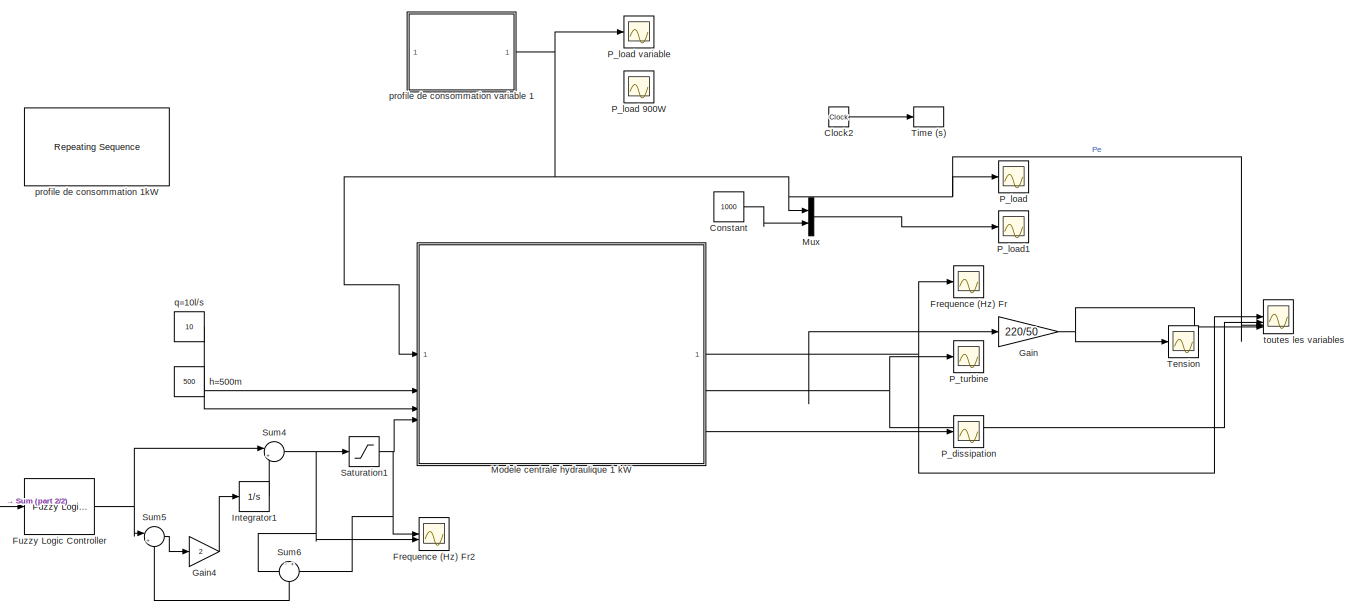
[diagram: root canvas - part 1/2, full width, middle band]
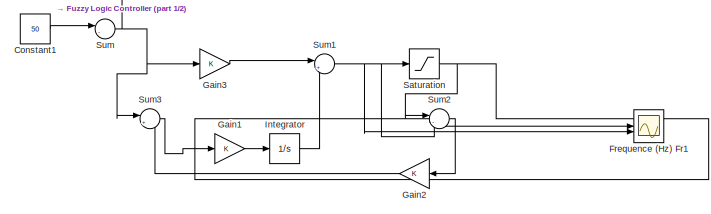
[diagram: root canvas - part 2/2, bottom left region]
MODEL mdl_9a7ac70853d0
KIND model
CONFIG AbsTol = auto
CONFIG EnableMultiTasking = on
CONFIG FixedStep = 0.02
CONFIG MaxStep = auto
CONFIG MinStep = auto
CONFIG RelTol = 1e-3
CONFIG SampleTimeConstraint = Unconstrained
CONFIG SolverName = ode3
CONFIG StartTime = 0.0
CONFIG StopTime = 35
BLOCK [Clock] Clock2
BLOCK [Constant] Constant
  Value = 1000
BLOCK [Constant] Constant1
  Value = 50
BLOCK [Scope] Frequence (Hz) Fr
  Floating = off
  NumInputPorts = 1
  ScopeSpecificationString = Simulink.scopes.TimeScopeBlockCfg('CurrentConfiguration', extmgr.ConfigurationSet(extmgr.Configuration('Core','General UI',true),extmgr.Configuration('Core','Source UI',true),extmgr.Configuration('Sources','WiredSimulink',true,'DataLoggingVariableName','ScopeData2','DataLoggingSaveFormat','StructureWithTime','DataLoggingLimitDataPoints',true,'DataLoggingDecimation','1','DataLoggingDecimateData',tr...<+1783ch>
BLOCK [Scope] Frequence (Hz) Fr1
  Floating = off
  NumInputPorts = 2
  ScopeSpecificationString = Simulink.scopes.TimeScopeBlockCfg('CurrentConfiguration', extmgr.ConfigurationSet(extmgr.Configuration('Core','General UI',true),extmgr.Configuration('Core','Source UI',true),extmgr.Configuration('Sources','WiredSimulink',true,'DataLoggingVariableName','ScopeData1','DataLoggingSaveFormat','StructureWithTime','DataLoggingLimitDataPoints',true,'DataLoggingDecimation','1','DataLoggingDecimateData',tr...<+1693ch>
BLOCK [Scope] Frequence (Hz) Fr2
  Floating = off
  NumInputPorts = 2
  ScopeSpecificationString = Simulink.scopes.TimeScopeBlockCfg('CurrentConfiguration', extmgr.ConfigurationSet(extmgr.Configuration('Core','General UI',true),extmgr.Configuration('Core','Source UI',true),extmgr.Configuration('Sources','WiredSimulink',true,'DataLoggingVariableName','ScopeData1','DataLoggingSaveFormat','StructureWithTime','DataLoggingLimitDataPoints',true,'DataLoggingDecimation','1','DataLoggingDecimateData',tr...<+1690ch>
BLOCK [Reference] Fuzzy Logic Controller  REF=fuzblock/Fuzzy Logic   (lib defined in mdl_858b3b3e7478)
Controller
  SourceBlock = fuzblock/Fuzzy Logic \nController
  SourceType = Fuzzy Inference System
BLOCK [Gain] Gain
  Gain = 220/50
BLOCK [Gain] Gain1
BLOCK [Gain] Gain2
  NameLocation = top
BLOCK [Gain] Gain3
BLOCK [Gain] Gain4
  Gain = 2
BLOCK [Integrator] Integrator
BLOCK [Integrator] Integrator1
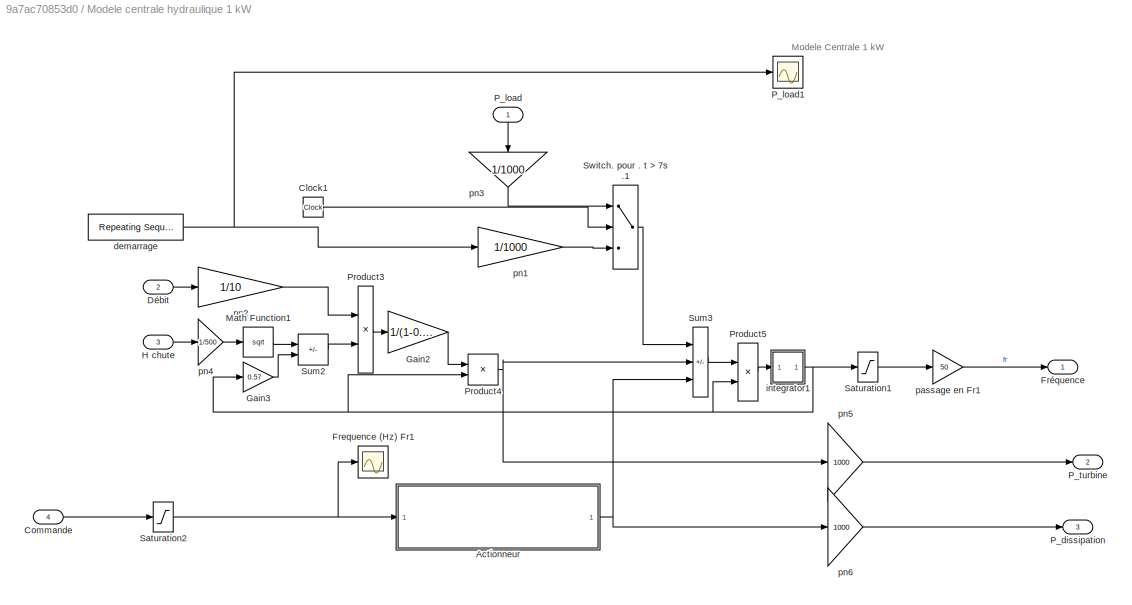
BLOCK [SubSystem] Modele centrale hydraulique 1 kW
  Permissions = NoReadOrWrite
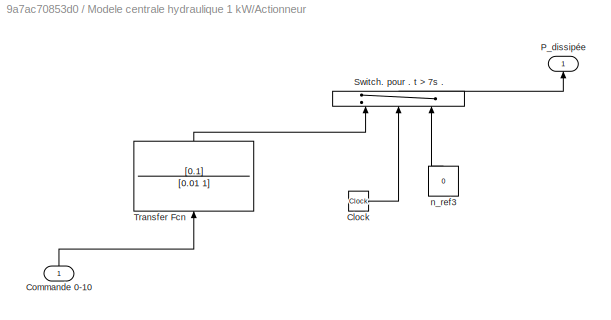
BLOCK [SubSystem] Modele centrale hydraulique 1 kW/Actionneur
BLOCK [Clock] Modele centrale hydraulique 1 kW/Actionneur/Clock
BLOCK [Inport] Modele centrale hydraulique 1 kW/Actionneur/Commande 0-10
  NameLocation = right
BLOCK [Outport] Modele centrale hydraulique 1 kW/Actionneur/P_dissipée
  NameLocation = right
BLOCK [Switch] Modele centrale hydraulique 1 kW/Actionneur/Switch. pour . t > 7s .
  InputSameDT = off
  NameLocation = left
  SaturateOnIntegerOverflow = off
  Threshold = 10
BLOCK [TransferFcn] Modele centrale hydraulique 1 kW/Actionneur/Transfer Fcn
  Denominator = [0.01 1]
  NameLocation = right
  Numerator = [0.1]
BLOCK [Constant] Modele centrale hydraulique 1 kW/Actionneur/n_ref3
  NameLocation = right
  SampleTime = 0.02
  Value = 0
BLOCK [Clock] Modele centrale hydraulique 1 kW/Clock1
BLOCK [Inport] Modele centrale hydraulique 1 kW/Commande
  Port = 4
BLOCK [Inport] Modele centrale hydraulique 1 kW/Débit
  Port = 2
BLOCK [Scope] Modele centrale hydraulique 1 kW/Frequence (Hz) Fr1
  Floating = off
  NumInputPorts = 1
  ScopeSpecificationString = C++SS(StrPVP('Location','[5, 48, 1925, 1039]'),StrPVP('Open','off'),MxPVP('AxesTitles',54,'struct(''axes1'',''%<SignalLabel>'')'),StrPVP('SaveName','ScopeData6'),StrPVP('DataFormat','StructureWithTime'),StrPVP('BlockParamSampleTime','0'),StrPVP('LimitDataPoints','on'),StrPVP('Decimation','1'),StrPVP('BlockParamSampleInput','off'))
BLOCK [Outport] Modele centrale hydraulique 1 kW/Fréquence
BLOCK [Gain] Modele centrale hydraulique 1 kW/Gain2
  Gain = 1/(1-0.57)
  OutDataTypeStr = Inherit: Same as input
  ParamDataTypeStr = Inherit: Same as input
  SaturateOnIntegerOverflow = on
BLOCK [Gain] Modele centrale hydraulique 1 kW/Gain3
  Gain = 0.57
  OutDataTypeStr = Inherit: Same as input
  ParamDataTypeStr = Inherit: Same as input
  SaturateOnIntegerOverflow = on
BLOCK [Inport] Modele centrale hydraulique 1 kW/H chute
  Port = 3
BLOCK [Math] Modele centrale hydraulique 1 kW/Math Function1
  Operator = sqrt
  SignedPower = on
BLOCK [Outport] Modele centrale hydraulique 1 kW/P_dissipation
  Port = 3
BLOCK [Inport] Modele centrale hydraulique 1 kW/P_load
  NameLocation = right
BLOCK [Scope] Modele centrale hydraulique 1 kW/P_load1
  Floating = off
  NumInputPorts = 1
  ScopeSpecificationString = Simulink.scopes.TimeScopeBlockCfg('CurrentConfiguration', extmgr.ConfigurationSet(extmgr.Configuration('Core','General UI',true),extmgr.Configuration('Core','Source UI',true),extmgr.Configuration('Sources','WiredSimulink',true,'DataLoggingVariableName','ScopeData1','DataLoggingSaveFormat','StructureWithTime','DataLoggingLimitDataPoints',true,'DataLoggingDecimation','1','DataLoggingDecimateData',tr...<+1700ch>
BLOCK [Outport] Modele centrale hydraulique 1 kW/P_turbine
  Port = 2
BLOCK [Product] Modele centrale hydraulique 1 kW/Product3
  InputSameDT = on
  OutDataTypeStr = Inherit: Same as first input
  SaturateOnIntegerOverflow = on
BLOCK [Product] Modele centrale hydraulique 1 kW/Product4
  InputSameDT = on
  OutDataTypeStr = Inherit: Same as first input
  SaturateOnIntegerOverflow = on
BLOCK [Product] Modele centrale hydraulique 1 kW/Product5
  InputSameDT = on
  Inputs = */
  OutDataTypeStr = Inherit: Same as first input
  SaturateOnIntegerOverflow = on
BLOCK [Saturate] Modele centrale hydraulique 1 kW/Saturation1
  LowerLimit = 0
  UpperLimit = 2.5
BLOCK [Saturate] Modele centrale hydraulique 1 kW/Saturation2
  LowerLimit = 0
  UpperLimit = 10
BLOCK [Sum] Modele centrale hydraulique 1 kW/Sum2
  IconShape = rectangular
  InputSameDT = on
  Inputs = +-
  OutDataTypeStr = Inherit: Same as first input
  SaturateOnIntegerOverflow = on
BLOCK [Sum] Modele centrale hydraulique 1 kW/Sum3
  IconShape = rectangular
  InputSameDT = on
  Inputs = -+-
  OutDataTypeStr = Inherit: Same as first input
  SaturateOnIntegerOverflow = on
BLOCK [Switch] Modele centrale hydraulique 1 kW/Switch. pour . t > 7s .1
  InputSameDT = off
  NameLocation = top
  SaturateOnIntegerOverflow = off
  Threshold = 10
BLOCK [Reference] Modele centrale hydraulique 1 kW/demarrage  REF=simulink/Sources/Repeating
Sequence
  NameLocation = top
  SourceBlock = simulink/Sources/Repeating\nSequence
  SourceType = Repeating table
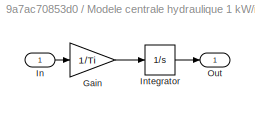
BLOCK [SubSystem] Modele centrale hydraulique 1 kW/integrator1
  ShowPortLabels = none
BLOCK [Gain] Modele centrale hydraulique 1 kW/integrator1/Gain
  Gain = 1/Ti
  OutDataTypeStr = Inherit: Same as input
  ParamDataTypeStr = Inherit: Same as input
  SaturateOnIntegerOverflow = on
BLOCK [Inport] Modele centrale hydraulique 1 kW/integrator1/In
BLOCK [Integrator] Modele centrale hydraulique 1 kW/integrator1/Integrator
  InitialCondition = Init
BLOCK [Outport] Modele centrale hydraulique 1 kW/integrator1/Out
  InitialOutput = 0
BLOCK [Gain] Modele centrale hydraulique 1 kW/passage en Fr1
  Gain = 50
BLOCK [Gain] Modele centrale hydraulique 1 kW/pn1
  Gain = 1/1000
  NameLocation = top
BLOCK [Gain] Modele centrale hydraulique 1 kW/pn2
  Gain = 1/10
  NameLocation = top
BLOCK [Gain] Modele centrale hydraulique 1 kW/pn3
  Gain = 1/1000
  NameLocation = right
BLOCK [Gain] Modele centrale hydraulique 1 kW/pn4
  Gain = 1/500
  NameLocation = top
BLOCK [Gain] Modele centrale hydraulique 1 kW/pn5
  Gain = 1000
  NameLocation = top
BLOCK [Gain] Modele centrale hydraulique 1 kW/pn6
  Gain = 1000
  NameLocation = top
BLOCK [Mux] Mux
  DisplayOption = bar
  Inputs = 2
BLOCK [Scope] P_dissipation
  Floating = off
  NumInputPorts = 1
  ScopeSpecificationString = Simulink.scopes.TimeScopeBlockCfg('CurrentConfiguration', extmgr.ConfigurationSet(extmgr.Configuration('Core','General UI',true),extmgr.Configuration('Core','Source UI',true),extmgr.Configuration('Sources','WiredSimulink',true,'DataLoggingVariableName','ScopeData3','DataLoggingSaveFormat','StructureWithTime','DataLoggingLimitDataPoints',true,'DataLoggingDecimation','1','DataLoggingDecimateData',tr...<+1705ch>
BLOCK [Scope] P_load
  Floating = off
  NumInputPorts = 1
  ScopeSpecificationString = Simulink.scopes.TimeScopeBlockCfg('CurrentConfiguration', extmgr.ConfigurationSet(extmgr.Configuration('Core','General UI',true),extmgr.Configuration('Core','Source UI',true),extmgr.Configuration('Sources','WiredSimulink',true,'DataLoggingVariableName','ScopeData1','DataLoggingSaveFormat','StructureWithTime','DataLoggingLimitDataPoints',true,'DataLoggingDecimation','1','DataLoggingDecimateData',tr...<+1691ch>
BLOCK [Scope] P_load 900W
  Floating = off
  NumInputPorts = 1
  ScopeSpecificationString = Simulink.scopes.TimeScopeBlockCfg('CurrentConfiguration', extmgr.ConfigurationSet(extmgr.Configuration('Core','General UI',true),extmgr.Configuration('Core','Source UI',true),extmgr.Configuration('Sources','WiredSimulink',true,'DataLoggingVariableName','ScopeData1','DataLoggingSaveFormat','StructureWithTime','DataLoggingLimitDataPoints',true,'DataLoggingDecimation','1','DataLoggingDecimateData',tr...<+1755ch>
BLOCK [Scope] P_load variable
  Floating = off
  NumInputPorts = 1
  ScopeSpecificationString = Simulink.scopes.TimeScopeBlockCfg('CurrentConfiguration', extmgr.ConfigurationSet(extmgr.Configuration('Core','General UI',true),extmgr.Configuration('Core','Source UI',true),extmgr.Configuration('Sources','WiredSimulink',true,'DataLoggingVariableName','ScopeData2','DataLoggingSaveFormat','StructureWithTime','DataLoggingLimitDataPoints',true,'DataLoggingDecimation','1','DataLoggingDecimateData',tr...<+1719ch>
BLOCK [Scope] P_load1
  Floating = off
  NumInputPorts = 1
  ScopeSpecificationString = Simulink.scopes.TimeScopeBlockCfg('CurrentConfiguration', extmgr.ConfigurationSet(extmgr.Configuration('Core','General UI',true),extmgr.Configuration('Core','Source UI',true),extmgr.Configuration('Sources','WiredSimulink',true,'DataLoggingVariableName','ScopeData4','DataLoggingSaveFormat','StructureWithTime','DataLoggingLimitDataPoints',true,'DataLoggingDecimation','1','DataLoggingDecimateData',tr...<+910ch>
BLOCK [Scope] P_turbine
  Floating = off
  NumInputPorts = 1
  ScopeSpecificationString = Simulink.scopes.TimeScopeBlockCfg('CurrentConfiguration', extmgr.ConfigurationSet(extmgr.Configuration('Core','General UI',true),extmgr.Configuration('Core','Source UI',true),extmgr.Configuration('Sources','WiredSimulink',true,'DataLoggingSaveFormat','StructureWithTime','DataLoggingLimitDataPoints',true,'DataLoggingDecimation','1','DataLoggingDecimateData',true),extmgr.Configuration('Visuals','Tim...<+1684ch>
BLOCK [Saturate] Saturation
  LowerLimit = 0
  UpperLimit = 10
BLOCK [Saturate] Saturation1
  LowerLimit = 0
  UpperLimit = 10
BLOCK [Sum] Sum
  Inputs = |-+
BLOCK [Sum] Sum1
  Inputs = |++
BLOCK [Sum] Sum2
  Inputs = |-+
BLOCK [Sum] Sum3
  Inputs = |+-
BLOCK [Sum] Sum4
  Inputs = |++
BLOCK [Sum] Sum5
  Inputs = |++
BLOCK [Sum] Sum6
  Inputs = -+
  NameLocation = left
BLOCK [Scope] Tension
  Floating = off
  NumInputPorts = 1
  ScopeSpecificationString = Simulink.scopes.TimeScopeBlockCfg('CurrentConfiguration', extmgr.ConfigurationSet(extmgr.Configuration('Core','General UI',true),extmgr.Configuration('Core','Source UI',true),extmgr.Configuration('Sources','WiredSimulink',true,'DataLoggingVariableName','ScopeData5','DataLoggingSaveFormat','StructureWithTime','DataLoggingLimitDataPoints',true,'DataLoggingDecimation','1','DataLoggingDecimateData',tr...<+1699ch>
BLOCK [ToWorkspace] Time (s)
  MaxDataPoints = inf
  SampleTime = -1
  VariableName = time
BLOCK [Constant] h=500m
  SampleTime = 0.02
  Value = 500
BLOCK [Reference] profile de consommation 1kW  REF=simulink/Sources/Repeating
Sequence
  NameLocation = top
  SourceBlock = simulink/Sources/Repeating\nSequence
  SourceType = Repeating table
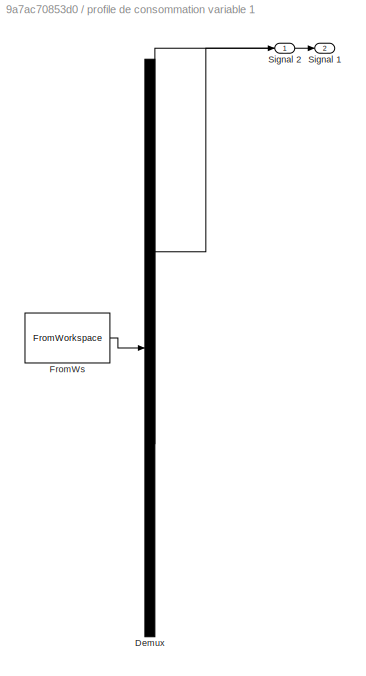
BLOCK [SubSystem] profile de consommation variable 1
  ClipboardFcn = sigbuilder_block('clipboard');
  CloseFcn = sigbuilder_block('close');
  ContinueFcn = sigbuilder_block('continue');
  CopyFcn = sigbuilder_block('copy');
  DeleteFcn = sigbuilder_block('delete');
  LoadFcn = sigbuilder_block('load');
  MaskHideContents = on
  ModelCloseFcn = sigbuilder_block('modelClose');
  NameChangeFcn = sigbuilder_block('namechange');
  OpenFcn = sigbuilder_block('open',[6 30 1428 681.75 ]);
  PauseFcn = sigbuilder_block('pause');
  PreSaveFcn = sigbuilder_block('preSave');
  StartFcn = sigbuilder_block('start');
  StopFcn = sigbuilder_block('stop');
  Tag = STV Subsys
BLOCK [Demux] profile de consommation variable 1/Demux
  DisplayOption = none
  Outputs = 2
  Tag = STV Demux
BLOCK [FromWorkspace] profile de consommation variable 1/FromWs
  Tag = STV FromWs
  VariableName = tuvar
BLOCK [Outport] profile de consommation variable 1/Signal 1
  Port = 2
  Tag = STV Outport
BLOCK [Outport] profile de consommation variable 1/Signal 2
  Tag = STV Outport
BLOCK [Constant] q=10l//s
  SampleTime = 0.02
  Value = 10
BLOCK [Scope] toutes les variables
  Floating = off
  NumInputPorts = 4
  ScopeSpecificationString = Simulink.scopes.TimeScopeBlockCfg('CurrentConfiguration', extmgr.ConfigurationSet(extmgr.Configuration('Core','General UI',true),extmgr.Configuration('Core','Source UI',true),extmgr.Configuration('Sources','WiredSimulink',true,'DataLoggingVariableName','ScopeData3','DataLoggingSaveFormat','StructureWithTime','DataLoggingLimitDataPoints',true,'DataLoggingDecimation','1','DataLoggingDecimateData',tr...<+3791ch>
ANNOTATION Modele centrale hydraulique 1 kW: Modele Centrale 1 kW
LINE Clock2:1 -> Time (s):1
LINE Constant1:1 -> Sum:1
LINE Constant:1 -> Mux:2
NET Fuzzy Logic Controller:1 -> Sum4:1, Sum5:1
LINE Gain1:1 -> Integrator:1
LINE Gain2:1 -> Sum3:2
LINE Gain3:1 -> Sum1:1
LINE Gain4:1 -> Integrator1:1
NET Gain:1 -> Tension:1, toutes les variables:4
LINE Integrator1:1 -> Sum4:2
LINE Integrator:1 -> Sum1:2
LINE Modele centrale hydraulique 1 kW/Actionneur/Clock:1 -> Modele centrale hydraulique 1 kW/Actionneur/Switch. pour . t > 7s .:2
LINE Modele centrale hydraulique 1 kW/Actionneur/Commande 0-10:1 -> Modele centrale hydraulique 1 kW/Actionneur/Transfer Fcn:1
LINE Modele centrale hydraulique 1 kW/Actionneur/Switch. pour . t > 7s .:1 -> Modele centrale hydraulique 1 kW/Actionneur/P_dissipée:1
LINE Modele centrale hydraulique 1 kW/Actionneur/Transfer Fcn:1 -> Modele centrale hydraulique 1 kW/Actionneur/Switch. pour . t > 7s .:1
LINE Modele centrale hydraulique 1 kW/Actionneur/n_ref3:1 -> Modele centrale hydraulique 1 kW/Actionneur/Switch. pour . t > 7s .:3
NET Modele centrale hydraulique 1 kW/Actionneur:1 -> Modele centrale hydraulique 1 kW/Sum3:3, Modele centrale hydraulique 1 kW/pn6:1
LINE Modele centrale hydraulique 1 kW/Clock1:1 -> Modele centrale hydraulique 1 kW/Switch. pour . t > 7s .1:2
LINE Modele centrale hydraulique 1 kW/Commande:1 -> Modele centrale hydraulique 1 kW/Saturation2:1
LINE Modele centrale hydraulique 1 kW/Débit:1 -> Modele centrale hydraulique 1 kW/pn2:1
LINE Modele centrale hydraulique 1 kW/Gain2:1 -> Modele centrale hydraulique 1 kW/Product4:1
LINE Modele centrale hydraulique 1 kW/Gain3:1 -> Modele centrale hydraulique 1 kW/Sum2:2
LINE Modele centrale hydraulique 1 kW/H chute:1 -> Modele centrale hydraulique 1 kW/pn4:1
LINE Modele centrale hydraulique 1 kW/Math Function1:1 -> Modele centrale hydraulique 1 kW/Sum2:1
LINE Modele centrale hydraulique 1 kW/P_load:1 -> Modele centrale hydraulique 1 kW/pn3:1
LINE Modele centrale hydraulique 1 kW/Product3:1 -> Modele centrale hydraulique 1 kW/Gain2:1
NET Modele centrale hydraulique 1 kW/Product4:1 -> Modele centrale hydraulique 1 kW/Sum3:2, Modele centrale hydraulique 1 kW/pn5:1
LINE Modele centrale hydraulique 1 kW/Product5:1 -> Modele centrale hydraulique 1 kW/integrator1:1
LINE Modele centrale hydraulique 1 kW/Saturation1:1 -> Modele centrale hydraulique 1 kW/passage en Fr1:1
NET Modele centrale hydraulique 1 kW/Saturation2:1 -> Modele centrale hydraulique 1 kW/Actionneur:1, Modele centrale hydraulique 1 kW/Frequence (Hz) Fr1:1
LINE Modele centrale hydraulique 1 kW/Sum2:1 -> Modele centrale hydraulique 1 kW/Product3:2
LINE Modele centrale hydraulique 1 kW/Sum3:1 -> Modele centrale hydraulique 1 kW/Product5:1
LINE Modele centrale hydraulique 1 kW/Switch. pour . t > 7s .1:1 -> Modele centrale hydraulique 1 kW/Sum3:1
NET Modele centrale hydraulique 1 kW/demarrage:1 -> Modele centrale hydraulique 1 kW/P_load1:1, Modele centrale hydraulique 1 kW/pn1:1
LINE Modele centrale hydraulique 1 kW/integrator1/Gain:1 -> Modele centrale hydraulique 1 kW/integrator1/Integrator:1
LINE Modele centrale hydraulique 1 kW/integrator1/In:1 -> Modele centrale hydraulique 1 kW/integrator1/Gain:1
LINE Modele centrale hydraulique 1 kW/integrator1/Integrator:1 -> Modele centrale hydraulique 1 kW/integrator1/Out:1
NET Modele centrale hydraulique 1 kW/integrator1:1 -> Modele centrale hydraulique 1 kW/Gain3:1, Modele centrale hydraulique 1 kW/Product4:2, Modele centrale hydraulique 1 kW/Product5:2, Modele centrale hydraulique 1 kW/Saturation1:1
LINE Modele centrale hydraulique 1 kW/passage en Fr1:1 -> Modele centrale hydraulique 1 kW/Fréquence:1
LINE Modele centrale hydraulique 1 kW/pn1:1 -> Modele centrale hydraulique 1 kW/Switch. pour . t > 7s .1:3
LINE Modele centrale hydraulique 1 kW/pn2:1 -> Modele centrale hydraulique 1 kW/Product3:1
LINE Modele centrale hydraulique 1 kW/pn3:1 -> Modele centrale hydraulique 1 kW/Switch. pour . t > 7s .1:1
LINE Modele centrale hydraulique 1 kW/pn4:1 -> Modele centrale hydraulique 1 kW/Math Function1:1
LINE Modele centrale hydraulique 1 kW/pn5:1 -> Modele centrale hydraulique 1 kW/P_turbine:1
LINE Modele centrale hydraulique 1 kW/pn6:1 -> Modele centrale hydraulique 1 kW/P_dissipation:1
NET Modele centrale hydraulique 1 kW:1 -> Frequence (Hz) Fr:1, Gain:1, toutes les variables:1
NET Modele centrale hydraulique 1 kW:2 -> P_turbine:1, toutes les variables:2
LINE Modele centrale hydraulique 1 kW:3 -> P_dissipation:1
LINE Mux:1 -> P_load1:1
NET Saturation1:1 -> Frequence (Hz) Fr2:1, Modele centrale hydraulique 1 kW:4, Sum6:2
NET Saturation:1 -> Frequence (Hz) Fr1:1, Sum2:1
NET Sum1:1 -> Frequence (Hz) Fr1:2, Saturation:1, Sum2:2
LINE Sum2:1 -> Gain2:1
LINE Sum3:1 -> Gain1:1
NET Sum4:1 -> Frequence (Hz) Fr2:2, Saturation1:1, Sum6:1
LINE Sum5:1 -> Gain4:1
LINE Sum6:1 -> Sum5:2
NET Sum:1 -> Fuzzy Logic Controller:1, Gain3:1, Sum3:1
LINE h=500m:1 -> Modele centrale hydraulique 1 kW:3
NET profile de consommation variable 1:1 -> Modele centrale hydraulique 1 kW:1, Mux:1, P_load variable:1, P_load:1, toutes les variables:3
LINE q=10l//s:1 -> Modele centrale hydraulique 1 kW:2
note: NET lines group one-source signal fan-out (src -> all destinations, sorted); 1:1 wires keep LINE
